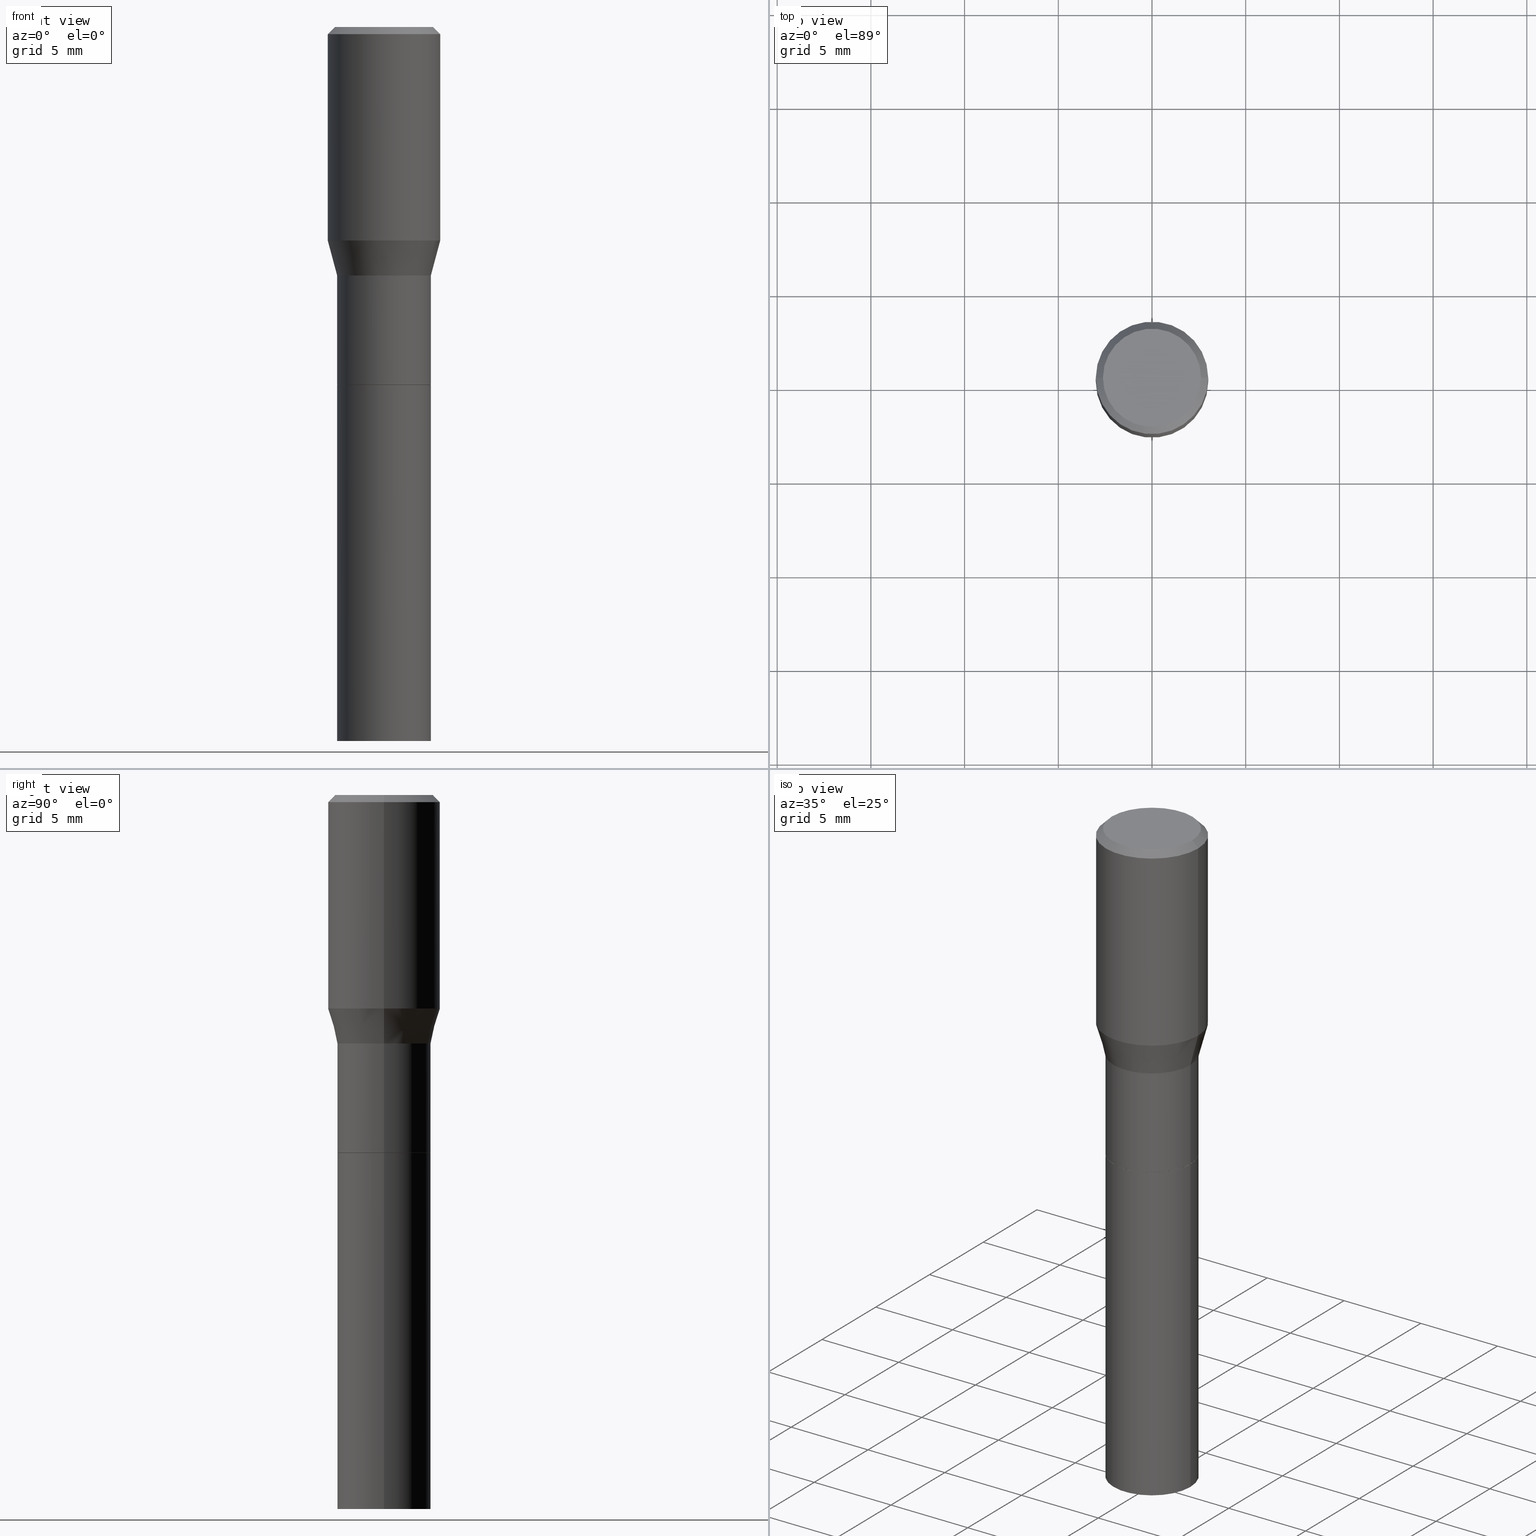
[diagram: canonical four-view strip — front | top / right | iso, engineering-drawing reading convention]
A machine part, canonical four-view strip (front | top / right | iso — engineering-drawing reading convention). The complete STEP part file that produces these views, byte-faithful:
ISO-10303-21;
HEADER;
FILE_DESCRIPTION (( 'STEP AP203' ),
    '1' );
FILE_NAME ('91109.STEP',
    '2024-03-12T20:23:24',
    ( '' ),
    ( '' ),
    'SwSTEP 2.0',
    'SolidWorks 2023',
    '' );
FILE_SCHEMA (( 'CONFIG_CONTROL_DESIGN' ));
ENDSEC;

DATA;
#1 = DIRECTION ( 'NONE',  ( -2.445468806185136597E-29, 3.491481338843145583E-15, 1.000000000000000000 ) ) ;
#2 = ORIENTED_EDGE ( 'NONE', *, *, #27, .T. ) ;
#3 = ORIENTED_EDGE ( 'NONE', *, *, #163, .T. ) ;
#4 = AXIS2_PLACEMENT_3D ( 'NONE', #191, #275, #464 ) ;
#5 = VECTOR ( 'NONE', #199, 39.37007874015748143 ) ;
#6 = PRODUCT_DEFINITION_FORMATION_WITH_SPECIFIED_SOURCE ( 'ANY', '', #443, .NOT_KNOWN. ) ;
#7 = CYLINDRICAL_SURFACE ( 'NONE', #117, 0.1180999999999999966 ) ;
#8 = ADVANCED_BREP_SHAPE_REPRESENTATION ( '91109', ( #399, #405, #152 ), #350 ) ;
#9 = EDGE_CURVE ( 'NONE', #400, #347, #166, .T. ) ;
#10 = DIRECTION ( 'NONE',  ( 1.000000000000000000, -6.982962677686266711E-15, 4.876176775795936353E-29 ) ) ;
#11 = CARTESIAN_POINT ( 'NONE',  ( 1.838992542251222813E-29, -2.625593966810045497E-15, -0.7520000000000001128 ) ) ;
#12 = DIRECTION ( 'NONE',  ( -2.438088387897960049E-29, 3.491481338843145188E-15, 1.000000000000000000 ) ) ;
#13 = AXIS2_PLACEMENT_3D ( 'NONE', #11, #441, #119 ) ;
#14 = CARTESIAN_POINT ( 'NONE',  ( 1.276534716828641754E-29, -1.822553258876122695E-15, -0.5220000000000002416 ) ) ;
#15 = APPROVAL_DATE_TIME ( #88, #300 ) ;
#16 = CC_DESIGN_DATE_AND_TIME_ASSIGNMENT ( #20, #127, ( #287 ) ) ;
#17 = ORIENTED_EDGE ( 'NONE', *, *, #209, .F. ) ;
#18 = CONICAL_SURFACE ( 'NONE', #454, 0.09794999999999999540, 0.7853981633974653764 ) ;
#19 = FACE_OUTER_BOUND ( 'NONE', #398, .T. ) ;
#20 = DATE_AND_TIME ( #334, #365 ) ;
#21 = ADVANCED_FACE ( 'NONE', ( #120 ), #7, .T. ) ;
#22 = LOCAL_TIME ( 16, 23, 24.00000000000000000, #135 ) ;
#23 = DIRECTION ( 'NONE',  ( 1.000000000000000000, -6.982962677686266711E-15, 0.000000000000000000 ) ) ;
#24 = DIRECTION ( 'NONE',  ( -2.445468806185136597E-29, 3.491481338843145583E-15, 1.000000000000000000 ) ) ;
#25 = PERSON_AND_ORGANIZATION_ROLE ( 'creator' ) ;
#26 = AXIS2_PLACEMENT_3D ( 'NONE', #52, #193, #415 ) ;
#27 = EDGE_CURVE ( 'NONE', #139, #256, #136, .T. ) ;
#28 = CARTESIAN_POINT ( 'NONE',  ( -0.1180999999999999966, 2.971177144941290176E-17, -0.01499999999999999944 ) ) ;
#29 = CYLINDRICAL_SURFACE ( 'NONE', #181, 0.09844999999999999585 ) ;
#30 = ORIENTED_EDGE ( 'NONE', *, *, #339, .F. ) ;
#31 = APPROVAL ( #265, 'UNSPECIFIED' ) ;
#32 = CARTESIAN_POINT ( 'NONE',  ( 0.000000000000000000, 0.000000000000000000, 0.000000000000000000 ) ) ;
#33 = COORDINATED_UNIVERSAL_TIME_OFFSET ( 5, 0, .BEHIND. ) ;
#34 = FACE_OUTER_BOUND ( 'NONE', #319, .T. ) ;
#35 = ORIENTED_EDGE ( 'NONE', *, *, #70, .T. ) ;
#36 = VECTOR ( 'NONE', #274, 39.37007874015748854 ) ;
#37 = DIRECTION ( 'NONE',  ( 0.000000000000000000, 0.000000000000000000, 1.000000000000000000 ) ) ;
#38 = AXIS2_PLACEMENT_3D ( 'NONE', #290, #53, #255 ) ;
#39 = ORIENTED_EDGE ( 'NONE', *, *, #429, .T. ) ;
#40 = CYLINDRICAL_SURFACE ( 'NONE', #439, 0.1180999999999999966 ) ;
#41 = ORIENTED_EDGE ( 'NONE', *, *, #245, .T. ) ;
#42 = VERTEX_POINT ( 'NONE', #115 ) ;
#43 = DIRECTION ( 'NONE',  ( -1.000000000000000000, 6.982962677686266711E-15, 0.000000000000000000 ) ) ;
#44 = VERTEX_POINT ( 'NONE', #149 ) ;
#45 = AXIS2_PLACEMENT_3D ( 'NONE', #32, #313, #270 ) ;
#46 = EDGE_LOOP ( 'NONE', ( #73, #269, #426, #141 ) ) ;
#47 = PLANE ( 'NONE',  #175 ) ;
#48 = CARTESIAN_POINT ( 'NONE',  ( 3.668203209277704895E-29, -5.237222008264718177E-15, -1.500000000000000222 ) ) ;
#49 = EDGE_LOOP ( 'NONE', ( #354, #2, #318, #286 ) ) ;
#50 = CALENDAR_DATE ( 2024, 12, 3 ) ;
#51 = DIRECTION ( 'NONE',  ( 1.000000000000000000, -6.982962677686265922E-15, 0.000000000000000000 ) ) ;
#52 = CARTESIAN_POINT ( 'NONE',  ( 1.276534716828641754E-29, -1.822553258876122695E-15, -0.5220000000000002416 ) ) ;
#53 = DIRECTION ( 'NONE',  ( -2.445468806185136597E-29, 3.491481338843145583E-15, 1.000000000000000000 ) ) ;
#54 = COORDINATED_UNIVERSAL_TIME_OFFSET ( 5, 0, .BEHIND. ) ;
#55 = AXIS2_PLACEMENT_3D ( 'NONE', #157, #301, #414 ) ;
#56 = CARTESIAN_POINT ( 'NONE',  ( -0.1180999999999999966, -7.273552079512053883E-16, -0.4486652016312720481 ) ) ;
#57 = CARTESIAN_POINT ( 'NONE',  ( 0.1180999999999999966, -8.770601123173952432E-16, -0.01499999999999999944 ) ) ;
#58 = CARTESIAN_POINT ( 'NONE',  ( 0.09845000000000005136, -3.311320901758836948E-15, -0.7515000000000000568 ) ) ;
#59 = DIRECTION ( 'NONE',  ( 1.000000000000000000, -6.982962677686265922E-15, 4.883331232093008327E-29 ) ) ;
#60 = AXIS2_PLACEMENT_3D ( 'NONE', #329, #325, #77 ) ;
#61 = APPLICATION_CONTEXT ( 'configuration controlled 3d designs of mechanical parts and assemblies' ) ;
#62 = CIRCLE ( 'NONE', #323, 0.09844999999999999585 ) ;
#63 = CARTESIAN_POINT ( 'NONE',  ( 0.1180999999999999966, -8.625970336194650129E-16, -0.01499999999999999944 ) ) ;
#64 = FACE_OUTER_BOUND ( 'NONE', #211, .T. ) ;
#65 = DIRECTION ( 'NONE',  ( 2.438088387897960049E-29, -3.491481338843145188E-15, -1.000000000000000000 ) ) ;
#66 = EDGE_LOOP ( 'NONE', ( #279, #35, #442, #321 ) ) ;
#67 = EDGE_CURVE ( 'NONE', #177, #121, #295, .T. ) ;
#68 = CARTESIAN_POINT ( 'NONE',  ( -0.09845000000000005136, 6.995293233558189979E-16, -4.842691596355956844E-30 ) ) ;
#69 = ORIENTED_EDGE ( 'NONE', *, *, #222, .T. ) ;
#70 = EDGE_CURVE ( 'NONE', #121, #44, #80, .T. ) ;
#71 = VECTOR ( 'NONE', #188, 39.37007874015748143 ) ;
#72 = AXIS2_PLACEMENT_3D ( 'NONE', #90, #447, #125 ) ;
#73 = ORIENTED_EDGE ( 'NONE', *, *, #298, .F. ) ;
#74 = ORIENTED_EDGE ( 'NONE', *, *, #388, .T. ) ;
#75 = ORIENTED_EDGE ( 'NONE', *, *, #245, .F. ) ;
#76 = ADVANCED_FACE ( 'NONE', ( #363 ), #47, .F. ) ;
#77 = DIRECTION ( 'NONE',  ( 1.000000000000000000, -6.982962677686266711E-15, 0.000000000000000000 ) ) ;
#78 = CONICAL_SURFACE ( 'NONE', #316, 0.1180999999999999966, 0.7853981633974432830 ) ;
#79 = EDGE_CURVE ( 'NONE', #256, #139, #128, .T. ) ;
#80 = LINE ( 'NONE', #228, #71 ) ;
#81 = ADVANCED_FACE ( 'NONE', ( #225 ), #358, .T. ) ;
#82 = FACE_OUTER_BOUND ( 'NONE', #236, .T. ) ;
#83 = DIRECTION ( 'NONE',  ( -2.445468806185136877E-29, 3.491481338843145188E-15, 1.000000000000000000 ) ) ;
#84 = DIRECTION ( 'NONE',  ( 1.000000000000000000, -6.982962677686266711E-15, 0.000000000000000000 ) ) ;
#85 = DIRECTION ( 'NONE',  ( -2.445468806185136597E-29, 3.491481338843145583E-15, 1.000000000000000000 ) ) ;
#86 = CIRCLE ( 'NONE', #340, 0.1031000000000000111 ) ;
#87 = FACE_OUTER_BOUND ( 'NONE', #288, .T. ) ;
#88 = DATE_AND_TIME ( #50, #189 ) ;
#89 = ADVANCED_FACE ( 'NONE', ( #393 ), #40, .T. ) ;
#90 = CARTESIAN_POINT ( 'NONE',  ( 0.000000000000000000, 0.000000000000000000, 0.000000000000000000 ) ) ;
#91 = CONICAL_SURFACE ( 'NONE', #13, 0.09794999999999999540, 0.7853981633974653764 ) ;
#92 = AXIS2_PLACEMENT_3D ( 'NONE', #456, #417, #376 ) ;
#93 = DIRECTION ( 'NONE',  ( 1.000000000000000000, -6.982962677686265922E-15, 0.000000000000000000 ) ) ;
#94 = CARTESIAN_POINT ( 'NONE',  ( 1.838992542251222813E-29, -2.625593966810045497E-15, -0.7520000000000001128 ) ) ;
#95 = DIRECTION ( 'NONE',  ( 1.000000000000000000, -6.982962677686265133E-15, 0.000000000000000000 ) ) ;
#96 = PERSON_AND_ORGANIZATION ( #360, #349 ) ;
#97 = CARTESIAN_POINT ( 'NONE',  ( 1.837769807848130011E-29, -2.623848226140623599E-15, -0.7515000000000000568 ) ) ;
#98 = CALENDAR_DATE ( 2024, 12, 3 ) ;
#99 = CIRCLE ( 'NONE', #129, 0.1031000000000000111 ) ;
#100 = PLANE ( 'NONE',  #233 ) ;
#101 = VERTEX_POINT ( 'NONE', #214 ) ;
#102 = CARTESIAN_POINT ( 'NONE',  ( 1.838992542251222813E-29, -2.625593966810045497E-15, -0.7520000000000001128 ) ) ;
#103 = DIRECTION ( 'NONE',  ( 1.000000000000000000, 0.000000000000000000, 0.000000000000000000 ) ) ;
#104 = VERTEX_POINT ( 'NONE', #353 ) ;
#105 = EDGE_CURVE ( 'NONE', #139, #215, #320, .T. ) ;
#106 = DATE_AND_TIME ( #458, #22 ) ;
#107 = ORIENTED_EDGE ( 'NONE', *, *, #105, .T. ) ;
#108 = CC_DESIGN_APPROVAL ( #300, ( #287 ) ) ;
#109 = CARTESIAN_POINT ( 'NONE',  ( 0.000000000000000000, 0.000000000000000000, 0.000000000000000000 ) ) ;
#110 = ORIENTED_EDGE ( 'NONE', *, *, #298, .T. ) ;
#111 = LINE ( 'NONE', #144, #308 ) ;
#112 = ORIENTED_EDGE ( 'NONE', *, *, #401, .F. ) ;
#113 = EDGE_CURVE ( 'NONE', #457, #400, #204, .T. ) ;
#114 = CARTESIAN_POINT ( 'NONE',  ( -0.09794999999999999540, -1.929617357133027496E-15, -0.7520000000000001128 ) ) ;
#115 = CARTESIAN_POINT ( 'NONE',  ( 0.09844999999999999585, -3.313066642428258452E-15, -0.7520000000000001128 ) ) ;
#116 = DIRECTION ( 'NONE',  ( 1.000000000000000000, -6.982962677686265922E-15, 0.000000000000000000 ) ) ;
#117 = AXIS2_PLACEMENT_3D ( 'NONE', #220, #148, #10 ) ;
#118 = ADVANCED_FACE ( 'NONE', ( #169 ), #29, .T. ) ;
#119 = DIRECTION ( 'NONE',  ( 1.000000000000000000, -6.982962677686265133E-15, 0.000000000000000000 ) ) ;
#120 = FACE_OUTER_BOUND ( 'NONE', #145, .T. ) ;
#121 = VERTEX_POINT ( 'NONE', #278 ) ;
#122 = VECTOR ( 'NONE', #282, 39.37007874015748143 ) ;
#123 = DIRECTION ( 'NONE',  ( 2.445468806185136597E-29, -3.491481338843145583E-15, -1.000000000000000000 ) ) ;
#124 =( LENGTH_UNIT ( ) NAMED_UNIT ( * ) SI_UNIT ( $, .METRE. ) );
#125 = DIRECTION ( 'NONE',  ( 1.000000000000000000, -6.982962677686266711E-15, 4.876176775795935232E-29 ) ) ;
#126 = LINE ( 'NONE', #203, #122 ) ;
#127 = DATE_TIME_ROLE ( 'creation_date' ) ;
#128 = CIRCLE ( 'NONE', #302, 0.09845000000000005136 ) ;
#129 = AXIS2_PLACEMENT_3D ( 'NONE', #130, #352, #434 ) ;
#130 = CARTESIAN_POINT ( 'NONE',  ( -3.565051472193348194E-45, 5.089948665751259239E-31, 1.457819238248526181E-16 ) ) ;
#131 = DIRECTION ( 'NONE',  ( -2.445468806185136597E-29, 3.491481338843145583E-15, 1.000000000000000000 ) ) ;
#132 = DIRECTION ( 'NONE',  ( -2.445468806185136597E-29, 3.491481338843145583E-15, 1.000000000000000000 ) ) ;
#133 = ORIENTED_EDGE ( 'NONE', *, *, #113, .T. ) ;
#134 = FACE_OUTER_BOUND ( 'NONE', #357, .T. ) ;
#135 = COORDINATED_UNIVERSAL_TIME_OFFSET ( 5, 0, .BEHIND. ) ;
#136 = CIRCLE ( 'NONE', #431, 0.09845000000000005136 ) ;
#137 = VECTOR ( 'NONE', #385, 39.37007874015748143 ) ;
#138 = ADVANCED_FACE ( 'NONE', ( #421 ), #100, .F. ) ;
#139 = VERTEX_POINT ( 'NONE', #344 ) ;
#140 = ORIENTED_EDGE ( 'NONE', *, *, #342, .T. ) ;
#141 = ORIENTED_EDGE ( 'NONE', *, *, #27, .F. ) ;
#142 = ADVANCED_FACE ( 'NONE', ( #34 ), #143, .T. ) ;
#143 = CONICAL_SURFACE ( 'NONE', #150, 0.09845000000000005136, 0.2617993877991499074 ) ;
#144 = CARTESIAN_POINT ( 'NONE',  ( -0.1180999999999999966, 8.391509709326782957E-16, -5.809262341591043784E-30 ) ) ;
#145 = EDGE_LOOP ( 'NONE', ( #430, #140, #41, #173 ) ) ;
#146 = EDGE_CURVE ( 'NONE', #312, #261, #190, .T. ) ;
#147 = DIRECTION ( 'NONE',  ( -0.7071067811865595631, 7.493145998870398336E-15, 0.7071067811865354713 ) ) ;
#148 = DIRECTION ( 'NONE',  ( -2.445468806185136597E-29, 3.491481338843145583E-15, 1.000000000000000000 ) ) ;
#149 = CARTESIAN_POINT ( 'NONE',  ( -0.09844999999999999585, -3.231878664181563332E-15, -0.7520000000000001128 ) ) ;
#150 = AXIS2_PLACEMENT_3D ( 'NONE', #390, #462, #356 ) ;
#151 = ORIENTED_EDGE ( 'NONE', *, *, #362, .F. ) ;
#152 = AXIS2_PLACEMENT_3D ( 'NONE', #425, #37, #103 ) ;
#153 = PRODUCT_RELATED_PRODUCT_CATEGORY ( 'detail', '', ( #443 ) ) ;
#154 = CC_DESIGN_SECURITY_CLASSIFICATION ( #297, ( #6 ) ) ;
#155 = EDGE_LOOP ( 'NONE', ( #251, #179 ) ) ;
#156 = EDGE_CURVE ( 'NONE', #215, #347, #111, .T. ) ;
#157 = CARTESIAN_POINT ( 'NONE',  ( 1.837769807848130011E-29, -2.623848226140623599E-15, -0.7515000000000000568 ) ) ;
#158 = AXIS2_PLACEMENT_3D ( 'NONE', #221, #85, #437 ) ;
#159 = CYLINDRICAL_SURFACE ( 'NONE', #72, 0.09845000000000005136 ) ;
#160 = CC_DESIGN_PERSON_AND_ORGANIZATION_ASSIGNMENT ( #343, #25, ( #6 ) ) ;
#161 = DIRECTION ( 'NONE',  ( -2.445468806185136877E-29, 3.491481338843145188E-15, 1.000000000000000000 ) ) ;
#162 = PERSON_AND_ORGANIZATION_ROLE ( 'design_owner' ) ;
#163 = EDGE_CURVE ( 'NONE', #177, #42, #292, .T. ) ;
#164 = DIRECTION ( 'NONE',  ( 1.000000000000000000, -6.982962677686266711E-15, 0.000000000000000000 ) ) ;
#165 = PLANE ( 'NONE',  #92 ) ;
#166 = CIRCLE ( 'NONE', #60, 0.1180999999999999966 ) ;
#167 = AXIS2_PLACEMENT_3D ( 'NONE', #370, #361, #332 ) ;
#168 = CARTESIAN_POINT ( 'NONE',  ( 1.097196755010040478E-29, -1.566506178883883684E-15, -0.4486652016312720481 ) ) ;
#169 = FACE_OUTER_BOUND ( 'NONE', #66, .T. ) ;
#170 = ORIENTED_EDGE ( 'NONE', *, *, #192, .F. ) ;
#171 = CARTESIAN_POINT ( 'NONE',  ( -0.09794999999999999540, -1.926968129958916295E-15, -0.7520000000000001128 ) ) ;
#172 = ADVANCED_FACE ( 'NONE', ( #336 ), #369, .T. ) ;
#173 = ORIENTED_EDGE ( 'NONE', *, *, #411, .F. ) ;
#174 = PERSON_AND_ORGANIZATION ( #360, #349 ) ;
#175 = AXIS2_PLACEMENT_3D ( 'NONE', #187, #12, #259 ) ;
#176 = VECTOR ( 'NONE', #161, 39.37007874015748143 ) ;
#177 = VERTEX_POINT ( 'NONE', #264 ) ;
#178 = LINE ( 'NONE', #409, #403 ) ;
#179 = ORIENTED_EDGE ( 'NONE', *, *, #446, .F. ) ;
#180 = EDGE_LOOP ( 'NONE', ( #39, #208, #397, #75 ) ) ;
#181 = AXIS2_PLACEMENT_3D ( 'NONE', #314, #311, #459 ) ;
#182 = CIRCLE ( 'NONE', #444, 0.1180999999999999966 ) ;
#183 = CARTESIAN_POINT ( 'NONE',  ( 0.09844999999999999585, -6.874726756182129545E-16, 4.800596035771099214E-30 ) ) ;
#184 = ORIENTED_EDGE ( 'NONE', *, *, #79, .F. ) ;
#185 = ADVANCED_FACE ( 'NONE', ( #333 ), #229, .T. ) ;
#186 = CC_DESIGN_PERSON_AND_ORGANIZATION_ASSIGNMENT ( #231, #371, ( #287 ) ) ;
#187 = CARTESIAN_POINT ( 'NONE',  ( 1.838992542251222813E-29, -2.625593966810045497E-15, -0.7520000000000001128 ) ) ;
#188 = DIRECTION ( 'NONE',  ( -2.445468806185136877E-29, 3.491481338843145188E-15, 1.000000000000000000 ) ) ;
#189 = LOCAL_TIME ( 16, 23, 24.00000000000000000, #306 ) ;
#190 = LINE ( 'NONE', #114, #348 ) ;
#191 = CARTESIAN_POINT ( 'NONE',  ( 3.668203209277705088E-31, -5.237222008264718399E-17, -0.01499999999999999944 ) ) ;
#192 = EDGE_CURVE ( 'NONE', #412, #261, #433, .T. ) ;
#193 = DIRECTION ( 'NONE',  ( -2.445468806185136597E-29, 3.491481338843145583E-15, 1.000000000000000000 ) ) ;
#194 = PERSON_AND_ORGANIZATION ( #360, #349 ) ;
#195 = ADVANCED_FACE ( 'NONE', ( #87 ), #78, .T. ) ;
#196 = CIRCLE ( 'NONE', #422, 0.09844999999999999585 ) ;
#197 = CARTESIAN_POINT ( 'NONE',  ( -3.565051472193348194E-45, 5.089948665751259239E-31, 1.457819238248526181E-16 ) ) ;
#198 = ADVANCED_FACE ( 'NONE', ( #19 ), #159, .T. ) ;
#199 = DIRECTION ( 'NONE',  ( -2.445468806185136877E-29, 3.491481338843145188E-15, 1.000000000000000000 ) ) ;
#200 = DIRECTION ( 'NONE',  ( -2.445468806185136597E-29, 3.491481338843145583E-15, 1.000000000000000000 ) ) ;
#201 = UNCERTAINTY_MEASURE_WITH_UNIT (LENGTH_MEASURE( 1.000000000000000082E-05 ), #218, 'distance_accuracy_value', 'NONE');
#202 = CIRCLE ( 'NONE', #289, 0.09844999999999999585 ) ;
#203 = CARTESIAN_POINT ( 'NONE',  ( 0.09794999999999999540, -3.309575161089415444E-15, -0.7520000000000001128 ) ) ;
#204 = LINE ( 'NONE', #63, #402 ) ;
#205 = DIRECTION ( 'NONE',  ( 2.438088387897960049E-29, -3.491481338843145188E-15, -1.000000000000000000 ) ) ;
#206 = PERSON_AND_ORGANIZATION ( #360, #349 ) ;
#207 = DIRECTION ( 'NONE',  ( -1.000000000000000000, 6.982962677686265922E-15, -4.876176775795935793E-29 ) ) ;
#208 = ORIENTED_EDGE ( 'NONE', *, *, #156, .T. ) ;
#209 = EDGE_CURVE ( 'NONE', #44, #42, #202, .T. ) ;
#210 = CALENDAR_DATE ( 2024, 12, 3 ) ;
#211 = EDGE_LOOP ( 'NONE', ( #74, #257, #170, #30 ) ) ;
#212 = AXIS2_PLACEMENT_3D ( 'NONE', #97, #200, #23 ) ;
#213 = VERTEX_POINT ( 'NONE', #258 ) ;
#214 = CARTESIAN_POINT ( 'NONE',  ( -0.1031000000000000111, 7.461295621107778410E-16, 1.457819238248475152E-16 ) ) ;
#215 = VERTEX_POINT ( 'NONE', #56 ) ;
#216 = ORIENTED_EDGE ( 'NONE', *, *, #429, .F. ) ;
#217 = DIRECTION ( 'NONE',  ( -2.445468806185136597E-29, 3.491481338843145583E-15, 1.000000000000000000 ) ) ;
#218 =( CONVERSION_BASED_UNIT ( 'INCH', #366 ) LENGTH_UNIT ( ) NAMED_UNIT ( #432 ) );
#219 = LOCAL_TIME ( 16, 23, 24.00000000000000000, #33 ) ;
#220 = CARTESIAN_POINT ( 'NONE',  ( 0.000000000000000000, 0.000000000000000000, 0.000000000000000000 ) ) ;
#221 = CARTESIAN_POINT ( 'NONE',  ( 1.838992542251222813E-29, -2.625593966810045497E-15, -0.7520000000000001128 ) ) ;
#222 = EDGE_CURVE ( 'NONE', #101, #457, #86, .T. ) ;
#223 = DIRECTION ( 'NONE',  ( -2.445468806185136597E-29, 3.491481338843145583E-15, 1.000000000000000000 ) ) ;
#224 = ORIENTED_EDGE ( 'NONE', *, *, #79, .T. ) ;
#225 = FACE_OUTER_BOUND ( 'NONE', #465, .T. ) ;
#226 = AXIS2_PLACEMENT_3D ( 'NONE', #48, #293, #116 ) ;
#227 = ADVANCED_FACE ( 'NONE', ( #309 ), #389, .T. ) ;
#228 = CARTESIAN_POINT ( 'NONE',  ( -0.09844999999999999585, 6.995293233558186035E-16, -4.842691596355954042E-30 ) ) ;
#229 = CONICAL_SURFACE ( 'NONE', #26, 0.09845000000000005136, 0.2617993877991499074 ) ;
#230 = DIRECTION ( 'NONE',  ( -2.445468806185136877E-29, 3.491481338843145188E-15, 1.000000000000000000 ) ) ;
#231 = PERSON_AND_ORGANIZATION ( #360, #349 ) ;
#232 = CARTESIAN_POINT ( 'NONE',  ( 1.838992542251222813E-29, -2.625593966810045497E-15, -0.7520000000000001128 ) ) ;
#233 = AXIS2_PLACEMENT_3D ( 'NONE', #243, #65, #207 ) ;
#234 = CC_DESIGN_APPROVAL ( #31, ( #6 ) ) ;
#235 = CARTESIAN_POINT ( 'NONE',  ( -0.09845000000000005136, -1.924318902784805094E-15, -0.7515000000000000568 ) ) ;
#236 = EDGE_LOOP ( 'NONE', ( #378, #328, #351, #253 ) ) ;
#237 = LINE ( 'NONE', #68, #262 ) ;
#238 = APPROVAL_DATE_TIME ( #271, #317 ) ;
#239 = CARTESIAN_POINT ( 'NONE',  ( -0.1180999999999999966, 7.723156721521009862E-16, -0.01499999999999999944 ) ) ;
#240 = CIRCLE ( 'NONE', #167, 0.1180999999999999966 ) ;
#241 = LINE ( 'NONE', #239, #137 ) ;
#242 = DATE_AND_TIME ( #98, #219 ) ;
#243 = CARTESIAN_POINT ( 'NONE',  ( 7.199434520694541042E-16, 0.1031000000000000111, -2.870807641223019510E-16 ) ) ;
#244 = ORIENTED_EDGE ( 'NONE', *, *, #401, .T. ) ;
#245 = EDGE_CURVE ( 'NONE', #213, #400, #381, .T. ) ;
#246 = DIRECTION ( 'NONE',  ( -2.445468806185136597E-29, 3.491481338843145583E-15, 1.000000000000000000 ) ) ;
#247 = APPLICATION_PROTOCOL_DEFINITION ( 'international standard', 'config_control_design', 1994, #61 ) ;
#248 = DIRECTION ( 'NONE',  ( 0.7071067811865440200, -7.319954787623245001E-15, -0.7071067811865511255 ) ) ;
#249 = EDGE_LOOP ( 'NONE', ( #69, #244 ) ) ;
#250 = APPROVAL_STATUS ( 'not_yet_approved' ) ;
#251 = ORIENTED_EDGE ( 'NONE', *, *, #388, .F. ) ;
#252 = DIRECTION ( 'NONE',  ( 1.000000000000000000, -6.982962677686266711E-15, 4.876176775795936353E-29 ) ) ;
#253 = ORIENTED_EDGE ( 'NONE', *, *, #266, .F. ) ;
#254 = CARTESIAN_POINT ( 'NONE',  ( 3.668203209277705088E-31, -5.237222008264718399E-17, -0.01499999999999999944 ) ) ;
#255 = DIRECTION ( 'NONE',  ( 1.000000000000000000, -6.982962677686266711E-15, 4.876176775795936353E-29 ) ) ;
#256 = VERTEX_POINT ( 'NONE', #419 ) ;
#257 = ORIENTED_EDGE ( 'NONE', *, *, #146, .T. ) ;
#258 = CARTESIAN_POINT ( 'NONE',  ( 0.1180999999999999966, -2.391194071118632144E-15, -0.4486652016312720481 ) ) ;
#259 = DIRECTION ( 'NONE',  ( 1.000000000000000000, -6.982962677686265922E-15, 4.876176775795935793E-29 ) ) ;
#260 = APPLICATION_CONTEXT ( 'configuration controlled 3d designs of mechanical parts and assemblies' ) ;
#261 = VERTEX_POINT ( 'NONE', #235 ) ;
#262 = VECTOR ( 'NONE', #310, 39.37007874015748143 ) ;
#263 = APPROVAL_ROLE ( '' ) ;
#264 = CARTESIAN_POINT ( 'NONE',  ( 0.09844999999999999585, -5.924694683882931526E-15, -1.500000000000000222 ) ) ;
#265 = APPROVAL_STATUS ( 'not_yet_approved' ) ;
#266 = EDGE_CURVE ( 'NONE', #261, #412, #280, .T. ) ;
#267 = DIRECTION ( 'NONE',  ( -1.000000000000000000, 6.982962677686265922E-15, -4.876176775795935793E-29 ) ) ;
#268 = AXIS2_PLACEMENT_3D ( 'NONE', #102, #246, #418 ) ;
#269 = ORIENTED_EDGE ( 'NONE', *, *, #266, .T. ) ;
#270 = DIRECTION ( 'NONE',  ( 1.000000000000000000, -6.982962677686266711E-15, 4.876176775795935232E-29 ) ) ;
#271 = DATE_AND_TIME ( #210, #396 ) ;
#272 =( NAMED_UNIT ( * ) SI_UNIT ( $, .STERADIAN. ) SOLID_ANGLE_UNIT ( ) );
#273 = DIRECTION ( 'NONE',  ( -2.445468806185136597E-29, 3.491481338843145583E-15, 1.000000000000000000 ) ) ;
#274 = DIRECTION ( 'NONE',  ( -0.2588190451025211836, 5.211531920934547886E-15, 0.9659258262890679791 ) ) ;
#275 = DIRECTION ( 'NONE',  ( 2.445468806185136597E-29, -3.491481338843145583E-15, -1.000000000000000000 ) ) ;
#276 = DIRECTION ( 'NONE',  ( 1.000000000000000000, -6.982962677686269077E-15, 0.000000000000000000 ) ) ;
#277 = APPROVAL_ROLE ( '' ) ;
#278 = CARTESIAN_POINT ( 'NONE',  ( -0.09844999999999999585, -3.231878664181563332E-15, -1.500000000000000222 ) ) ;
#279 = ORIENTED_EDGE ( 'NONE', *, *, #67, .T. ) ;
#280 = CIRCLE ( 'NONE', #212, 0.09845000000000005136 ) ;
#281 = APPROVAL_PERSON_ORGANIZATION ( #96, #317, #341 ) ;
#282 = DIRECTION ( 'NONE',  ( 0.7071067811865595631, -2.468850131082382884E-15, 0.7071067811865354713 ) ) ;
#283 = DATE_TIME_ROLE ( 'classification_date' ) ;
#284 = ORIENTED_EDGE ( 'NONE', *, *, #70, .F. ) ;
#285 = EDGE_CURVE ( 'NONE', #412, #256, #305, .T. ) ;
#286 = ORIENTED_EDGE ( 'NONE', *, *, #342, .F. ) ;
#287 = PRODUCT_DEFINITION ( 'UNKNOWN', '', #6, #375 ) ;
#288 = EDGE_LOOP ( 'NONE', ( #112, #133, #423, #151 ) ) ;
#289 = AXIS2_PLACEMENT_3D ( 'NONE', #232, #435, #373 ) ;
#290 = CARTESIAN_POINT ( 'NONE',  ( 0.000000000000000000, 0.000000000000000000, 0.000000000000000000 ) ) ;
#291 = ORIENTED_EDGE ( 'NONE', *, *, #411, .T. ) ;
#292 = LINE ( 'NONE', #183, #296 ) ;
#293 = DIRECTION ( 'NONE',  ( -2.445468806185136597E-29, 3.491481338843145583E-15, 1.000000000000000000 ) ) ;
#294 = PRODUCT_DEFINITION_SHAPE ( 'NONE', 'NONE',  #287 ) ;
#295 = CIRCLE ( 'NONE', #226, 0.09844999999999999585 ) ;
#296 = VECTOR ( 'NONE', #83, 39.37007874015748143 ) ;
#297 = SECURITY_CLASSIFICATION ( '', '', #382 ) ;
#298 = EDGE_CURVE ( 'NONE', #261, #139, #237, .T. ) ;
#299 = ORIENTED_EDGE ( 'NONE', *, *, #222, .F. ) ;
#300 = APPROVAL ( #331, 'UNSPECIFIED' ) ;
#301 = DIRECTION ( 'NONE',  ( -2.445468806185136597E-29, 3.491481338843145583E-15, 1.000000000000000000 ) ) ;
#302 = AXIS2_PLACEMENT_3D ( 'NONE', #14, #408, #84 ) ;
#303 = AXIS2_PLACEMENT_3D ( 'NONE', #453, #205, #267 ) ;
#304 = CC_DESIGN_APPROVAL ( #317, ( #297 ) ) ;
#305 = LINE ( 'NONE', #337, #5 ) ;
#306 = COORDINATED_UNIVERSAL_TIME_OFFSET ( 5, 0, .BEHIND. ) ;
#307 = FACE_OUTER_BOUND ( 'NONE', #463, .T. ) ;
#308 = VECTOR ( 'NONE', #230, 39.37007874015748143 ) ;
#309 = FACE_OUTER_BOUND ( 'NONE', #46, .T. ) ;
#310 = DIRECTION ( 'NONE',  ( -2.445468806185136877E-29, 3.491481338843145188E-15, 1.000000000000000000 ) ) ;
#311 = DIRECTION ( 'NONE',  ( -2.445468806185136597E-29, 3.491481338843145583E-15, 1.000000000000000000 ) ) ;
#312 = VERTEX_POINT ( 'NONE', #171 ) ;
#313 = DIRECTION ( 'NONE',  ( -2.445468806185136597E-29, 3.491481338843145583E-15, 1.000000000000000000 ) ) ;
#314 = CARTESIAN_POINT ( 'NONE',  ( 0.000000000000000000, 0.000000000000000000, 0.000000000000000000 ) ) ;
#315 = ORIENTED_EDGE ( 'NONE', *, *, #362, .T. ) ;
#316 = AXIS2_PLACEMENT_3D ( 'NONE', #445, #123, #43 ) ;
#317 = APPROVAL ( #250, 'UNSPECIFIED' ) ;
#318 = ORIENTED_EDGE ( 'NONE', *, *, #416, .T. ) ;
#319 = EDGE_LOOP ( 'NONE', ( #224, #107, #216, #364 ) ) ;
#320 = LINE ( 'NONE', #383, #36 ) ;
#321 = ORIENTED_EDGE ( 'NONE', *, *, #163, .F. ) ;
#322 = EDGE_CURVE ( 'NONE', #121, #177, #62, .T. ) ;
#323 = AXIS2_PLACEMENT_3D ( 'NONE', #450, #132, #93 ) ;
#324 = APPROVAL_PERSON_ORGANIZATION ( #448, #31, #277 ) ;
#325 = DIRECTION ( 'NONE',  ( -2.445468806185136597E-29, 3.491481338843145583E-15, 1.000000000000000000 ) ) ;
#326 = DIRECTION ( 'NONE',  ( -2.445468806185136597E-29, 3.491481338843145583E-15, 1.000000000000000000 ) ) ;
#327 = ADVANCED_FACE ( 'NONE', ( #134 ), #165, .F. ) ;
#328 = ORIENTED_EDGE ( 'NONE', *, *, #446, .T. ) ;
#329 = CARTESIAN_POINT ( 'NONE',  ( 3.668203209277705088E-31, -5.237222008264718399E-17, -0.01499999999999999944 ) ) ;
#330 = ORIENTED_EDGE ( 'NONE', *, *, #192, .T. ) ;
#331 = APPROVAL_STATUS ( 'not_yet_approved' ) ;
#332 = DIRECTION ( 'NONE',  ( 1.000000000000000000, -6.982962677686269077E-15, 0.000000000000000000 ) ) ;
#333 = FACE_OUTER_BOUND ( 'NONE', #49, .T. ) ;
#334 = CALENDAR_DATE ( 2024, 12, 3 ) ;
#335 = CLOSED_SHELL ( 'NONE', ( #118, #327, #172, #372 ) ) ;
#336 = FACE_OUTER_BOUND ( 'NONE', #387, .T. ) ;
#337 = CARTESIAN_POINT ( 'NONE',  ( 0.09845000000000005136, -6.874726756182133489E-16, 4.800596035771100615E-30 ) ) ;
#338 = APPROVAL_DATE_TIME ( #106, #31 ) ;
#339 = EDGE_CURVE ( 'NONE', #104, #412, #126, .T. ) ;
#340 = AXIS2_PLACEMENT_3D ( 'NONE', #197, #24, #59 ) ;
#341 = APPROVAL_ROLE ( '' ) ;
#342 = EDGE_CURVE ( 'NONE', #215, #213, #374, .T. ) ;
#343 = PERSON_AND_ORGANIZATION ( #360, #349 ) ;
#344 = CARTESIAN_POINT ( 'NONE',  ( -0.09845000000000005136, -9.251895717357545429E-16, -0.5220000000000002416 ) ) ;
#345 = ORIENTED_EDGE ( 'NONE', *, *, #322, .T. ) ;
#346 = MECHANICAL_CONTEXT ( 'NONE', #61, 'mechanical' ) ;
#347 = VERTEX_POINT ( 'NONE', #28 ) ;
#348 = VECTOR ( 'NONE', #147, 39.37007874015748143 ) ;
#349 = ORGANIZATION ( 'UNSPECIFIED', 'UNSPECIFIED', '' ) ;
#350 =( GEOMETRIC_REPRESENTATION_CONTEXT ( 3 ) GLOBAL_UNCERTAINTY_ASSIGNED_CONTEXT ( ( #201 ) ) GLOBAL_UNIT_ASSIGNED_CONTEXT ( ( #218, #455, #272 ) ) REPRESENTATION_CONTEXT ( 'NONE', 'WORKASPACE' ) );
#351 = ORIENTED_EDGE ( 'NONE', *, *, #339, .T. ) ;
#352 = DIRECTION ( 'NONE',  ( -2.445468806185136597E-29, 3.491481338843145583E-15, 1.000000000000000000 ) ) ;
#353 = CARTESIAN_POINT ( 'NONE',  ( 0.09794999999999999540, -3.309575161089415444E-15, -0.7520000000000001128 ) ) ;
#354 = ORIENTED_EDGE ( 'NONE', *, *, #105, .F. ) ;
#355 = ADVANCED_FACE ( 'NONE', ( #64 ), #18, .T. ) ;
#356 = DIRECTION ( 'NONE',  ( 1.000000000000000000, -6.982962677686266711E-15, 0.000000000000000000 ) ) ;
#357 = EDGE_LOOP ( 'NONE', ( #394, #460 ) ) ;
#358 = CONICAL_SURFACE ( 'NONE', #4, 0.1180999999999999966, 0.7853981633974432830 ) ;
#359 = CIRCLE ( 'NONE', #158, 0.09794999999999999540 ) ;
#360 = PERSON ( 'UNSPECIFIED', 'UNSPECIFIED', 'UNSPECIFIED', ('UNSPECIFIED'), ('UNSPECIFIED'), ('UNSPECIFIED') ) ;
#361 = DIRECTION ( 'NONE',  ( -2.445468806185136597E-29, 3.491481338843145583E-15, 1.000000000000000000 ) ) ;
#362 = EDGE_CURVE ( 'NONE', #101, #347, #241, .T. ) ;
#363 = FACE_OUTER_BOUND ( 'NONE', #155, .T. ) ;
#364 = ORIENTED_EDGE ( 'NONE', *, *, #416, .F. ) ;
#365 = LOCAL_TIME ( 16, 23, 24.00000000000000000, #54 ) ;
#366 = LENGTH_MEASURE_WITH_UNIT ( LENGTH_MEASURE( 0.02539999999999999897 ), #124 );
#367 = ORIENTED_EDGE ( 'NONE', *, *, #285, .F. ) ;
#368 = CARTESIAN_POINT ( 'NONE',  ( 0.1031000000000000111, -7.849571885948547775E-16, 1.457819238248578690E-16 ) ) ;
#369 = CYLINDRICAL_SURFACE ( 'NONE', #38, 0.09844999999999999585 ) ;
#370 = CARTESIAN_POINT ( 'NONE',  ( 1.097196755010040478E-29, -1.566506178883883684E-15, -0.4486652016312720481 ) ) ;
#371 = PERSON_AND_ORGANIZATION_ROLE ( 'creator' ) ;
#372 = ADVANCED_FACE ( 'NONE', ( #307 ), #424, .F. ) ;
#373 = DIRECTION ( 'NONE',  ( 1.000000000000000000, -6.982962677686265922E-15, 0.000000000000000000 ) ) ;
#374 = CIRCLE ( 'NONE', #440, 0.1180999999999999966 ) ;
#375 = DESIGN_CONTEXT ( 'detailed design', #260, 'design' ) ;
#376 = DIRECTION ( 'NONE',  ( 1.000000000000000000, -6.982962677686265922E-15, 4.876176775795935793E-29 ) ) ;
#377 = PERSON_AND_ORGANIZATION ( #360, #349 ) ;
#378 = ORIENTED_EDGE ( 'NONE', *, *, #146, .F. ) ;
#379 = CARTESIAN_POINT ( 'NONE',  ( 0.1180999999999999966, -8.246878922347480654E-16, 5.758764772215000440E-30 ) ) ;
#380 = CC_DESIGN_PERSON_AND_ORGANIZATION_ASSIGNMENT ( #194, #162, ( #443 ) ) ;
#381 = LINE ( 'NONE', #379, #176 ) ;
#382 = SECURITY_CLASSIFICATION_LEVEL ( 'unclassified' ) ;
#383 = CARTESIAN_POINT ( 'NONE',  ( -0.09845000000000005136, -1.123023935520303796E-15, -0.5220000000000002416 ) ) ;
#384 = CIRCLE ( 'NONE', #268, 0.09794999999999999540 ) ;
#385 = DIRECTION ( 'NONE',  ( -0.7071067811865440200, 2.468850131082219590E-15, -0.7071067811865511255 ) ) ;
#386 = COORDINATED_UNIVERSAL_TIME_OFFSET ( 5, 0, .BEHIND. ) ;
#387 = EDGE_LOOP ( 'NONE', ( #284, #345, #3, #17 ) ) ;
#388 = EDGE_CURVE ( 'NONE', #104, #312, #384, .T. ) ;
#389 = CYLINDRICAL_SURFACE ( 'NONE', #45, 0.09845000000000005136 ) ;
#390 = CARTESIAN_POINT ( 'NONE',  ( 1.276534716828641754E-29, -1.822553258876122695E-15, -0.5220000000000002416 ) ) ;
#391 = ORIENTED_EDGE ( 'NONE', *, *, #449, .T. ) ;
#392 = SHAPE_DEFINITION_REPRESENTATION ( #294, #8 ) ;
#393 = FACE_OUTER_BOUND ( 'NONE', #180, .T. ) ;
#394 = ORIENTED_EDGE ( 'NONE', *, *, #67, .F. ) ;
#395 = APPROVAL_PERSON_ORGANIZATION ( #377, #300, #263 ) ;
#396 = LOCAL_TIME ( 16, 23, 24.00000000000000000, #386 ) ;
#397 = ORIENTED_EDGE ( 'NONE', *, *, #9, .F. ) ;
#398 = EDGE_LOOP ( 'NONE', ( #330, #110, #184, #367 ) ) ;
#399 = MANIFOLD_SOLID_BREP ( 'Body-Move/Copy2[1]', #335 ) ;
#400 = VERTEX_POINT ( 'NONE', #57 ) ;
#401 = EDGE_CURVE ( 'NONE', #457, #101, #99, .T. ) ;
#402 = VECTOR ( 'NONE', #248, 39.37007874015748143 ) ;
#403 = VECTOR ( 'NONE', #413, 39.37007874015748854 ) ;
#404 = DIRECTION ( 'NONE',  ( 1.000000000000000000, -6.982962677686266711E-15, 0.000000000000000000 ) ) ;
#405 = MANIFOLD_SOLID_BREP ( 'Body-Move/Copy2[2]', #410 ) ;
#406 = CC_DESIGN_PERSON_AND_ORGANIZATION_ASSIGNMENT ( #206, #427, ( #297 ) ) ;
#407 = CARTESIAN_POINT ( 'NONE',  ( 1.838992542251222813E-29, -2.625593966810045497E-15, -0.7520000000000001128 ) ) ;
#408 = DIRECTION ( 'NONE',  ( -2.445468806185136597E-29, 3.491481338843145583E-15, 1.000000000000000000 ) ) ;
#409 = CARTESIAN_POINT ( 'NONE',  ( 0.09845000000000005136, -2.510025934494336044E-15, -0.5220000000000002416 ) ) ;
#410 = CLOSED_SHELL ( 'NONE', ( #198, #355, #195, #89, #142, #185, #21, #81, #138, #76, #466, #227 ) ) ;
#411 = EDGE_CURVE ( 'NONE', #347, #400, #182, .T. ) ;
#412 = VERTEX_POINT ( 'NONE', #58 ) ;
#413 = DIRECTION ( 'NONE',  ( 0.2588190451025211836, 1.565188264969622559E-15, 0.9659258262890679791 ) ) ;
#414 = DIRECTION ( 'NONE',  ( 1.000000000000000000, -6.982962677686266711E-15, 0.000000000000000000 ) ) ;
#415 = DIRECTION ( 'NONE',  ( 1.000000000000000000, -6.982962677686266711E-15, 0.000000000000000000 ) ) ;
#416 = EDGE_CURVE ( 'NONE', #256, #213, #178, .T. ) ;
#417 = DIRECTION ( 'NONE',  ( -2.438088387897960049E-29, 3.491481338843145188E-15, 1.000000000000000000 ) ) ;
#418 = DIRECTION ( 'NONE',  ( 1.000000000000000000, -6.982962677686265133E-15, 0.000000000000000000 ) ) ;
#419 = CARTESIAN_POINT ( 'NONE',  ( 0.09845000000000005136, -2.510025934494336044E-15, -0.5220000000000002416 ) ) ;
#420 = PERSON_AND_ORGANIZATION_ROLE ( 'design_supplier' ) ;
#421 = FACE_OUTER_BOUND ( 'NONE', #249, .T. ) ;
#422 = AXIS2_PLACEMENT_3D ( 'NONE', #407, #326, #51 ) ;
#423 = ORIENTED_EDGE ( 'NONE', *, *, #9, .T. ) ;
#424 = PLANE ( 'NONE',  #303 ) ;
#425 = CARTESIAN_POINT ( 'NONE',  ( 0.000000000000000000, 0.000000000000000000, 0.000000000000000000 ) ) ;
#426 = ORIENTED_EDGE ( 'NONE', *, *, #285, .T. ) ;
#427 = PERSON_AND_ORGANIZATION_ROLE ( 'classification_officer' ) ;
#428 = ORIENTED_EDGE ( 'NONE', *, *, #113, .F. ) ;
#429 = EDGE_CURVE ( 'NONE', #213, #215, #240, .T. ) ;
#430 = ORIENTED_EDGE ( 'NONE', *, *, #156, .F. ) ;
#431 = AXIS2_PLACEMENT_3D ( 'NONE', #438, #223, #404 ) ;
#432 = DIMENSIONAL_EXPONENTS ( 1.000000000000000000, 0.000000000000000000, 0.000000000000000000, 0.000000000000000000, 0.000000000000000000, 0.000000000000000000, 0.000000000000000000 ) ;
#433 = CIRCLE ( 'NONE', #55, 0.09845000000000005136 ) ;
#434 = DIRECTION ( 'NONE',  ( 1.000000000000000000, -6.982962677686265922E-15, 4.883331232093008327E-29 ) ) ;
#435 = DIRECTION ( 'NONE',  ( -2.445468806185136597E-29, 3.491481338843145583E-15, 1.000000000000000000 ) ) ;
#436 = ORIENTED_EDGE ( 'NONE', *, *, #209, .T. ) ;
#437 = DIRECTION ( 'NONE',  ( 1.000000000000000000, -6.982962677686265133E-15, 0.000000000000000000 ) ) ;
#438 = CARTESIAN_POINT ( 'NONE',  ( 1.276534716828641754E-29, -1.822553258876122695E-15, -0.5220000000000002416 ) ) ;
#439 = AXIS2_PLACEMENT_3D ( 'NONE', #109, #1, #252 ) ;
#440 = AXIS2_PLACEMENT_3D ( 'NONE', #168, #131, #276 ) ;
#441 = DIRECTION ( 'NONE',  ( -2.445468806185136597E-29, 3.491481338843145583E-15, 1.000000000000000000 ) ) ;
#442 = ORIENTED_EDGE ( 'NONE', *, *, #449, .F. ) ;
#443 = PRODUCT ( '91109', '91109', '', ( #346 ) ) ;
#444 = AXIS2_PLACEMENT_3D ( 'NONE', #254, #217, #164 ) ;
#445 = CARTESIAN_POINT ( 'NONE',  ( 3.668203209277705088E-31, -5.237222008264718399E-17, -0.01499999999999999944 ) ) ;
#446 = EDGE_CURVE ( 'NONE', #312, #104, #359, .T. ) ;
#447 = DIRECTION ( 'NONE',  ( -2.445468806185136597E-29, 3.491481338843145583E-15, 1.000000000000000000 ) ) ;
#448 = PERSON_AND_ORGANIZATION ( #360, #349 ) ;
#449 = EDGE_CURVE ( 'NONE', #42, #44, #196, .T. ) ;
#450 = CARTESIAN_POINT ( 'NONE',  ( 3.668203209277704895E-29, -5.237222008264718177E-15, -1.500000000000000222 ) ) ;
#451 = APPLICATION_PROTOCOL_DEFINITION ( 'international standard', 'config_control_design', 1994, #260 ) ;
#452 = CC_DESIGN_PERSON_AND_ORGANIZATION_ASSIGNMENT ( #174, #420, ( #6 ) ) ;
#453 = CARTESIAN_POINT ( 'NONE',  ( 6.874726756182312955E-16, 0.09844999999999735907, -0.7520000000000004459 ) ) ;
#454 = AXIS2_PLACEMENT_3D ( 'NONE', #94, #273, #95 ) ;
#455 =( NAMED_UNIT ( * ) PLANE_ANGLE_UNIT ( ) SI_UNIT ( $, .RADIAN. ) );
#456 = CARTESIAN_POINT ( 'NONE',  ( 3.576687321579069994E-29, -5.368277968210015545E-15, -1.500000000000000222 ) ) ;
#457 = VERTEX_POINT ( 'NONE', #368 ) ;
#458 = CALENDAR_DATE ( 2024, 12, 3 ) ;
#459 = DIRECTION ( 'NONE',  ( 1.000000000000000000, -6.982962677686266711E-15, 4.876176775795936353E-29 ) ) ;
#460 = ORIENTED_EDGE ( 'NONE', *, *, #322, .F. ) ;
#461 = CC_DESIGN_DATE_AND_TIME_ASSIGNMENT ( #242, #283, ( #297 ) ) ;
#462 = DIRECTION ( 'NONE',  ( -2.445468806185136597E-29, 3.491481338843145583E-15, 1.000000000000000000 ) ) ;
#463 = EDGE_LOOP ( 'NONE', ( #391, #436 ) ) ;
#464 = DIRECTION ( 'NONE',  ( -1.000000000000000000, 6.982962677686266711E-15, 0.000000000000000000 ) ) ;
#465 = EDGE_LOOP ( 'NONE', ( #428, #299, #315, #291 ) ) ;
#466 = ADVANCED_FACE ( 'NONE', ( #82 ), #91, .T. ) ;
ENDSEC;
END-ISO-10303-21;
